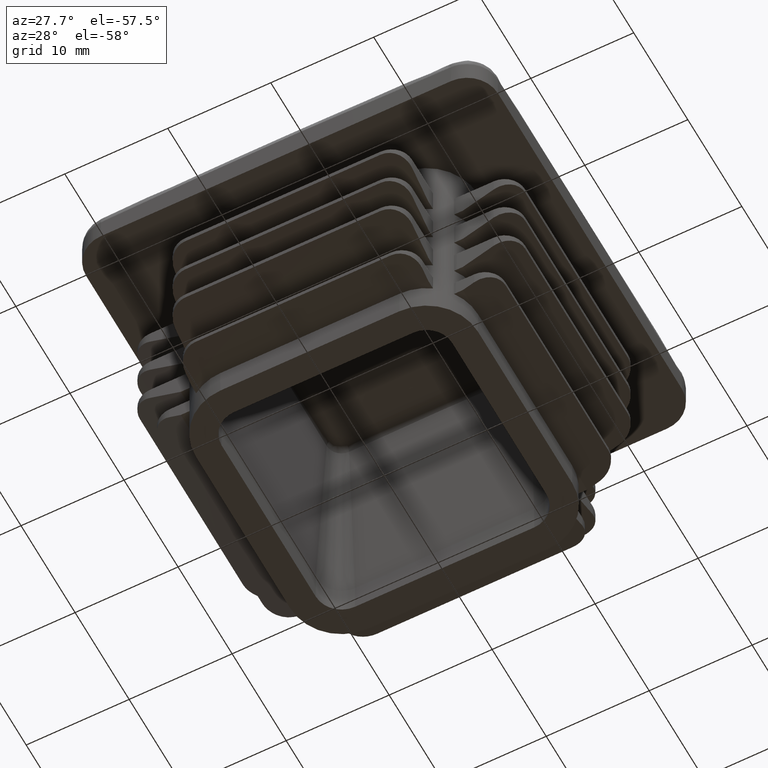
[diagram: clean part render]
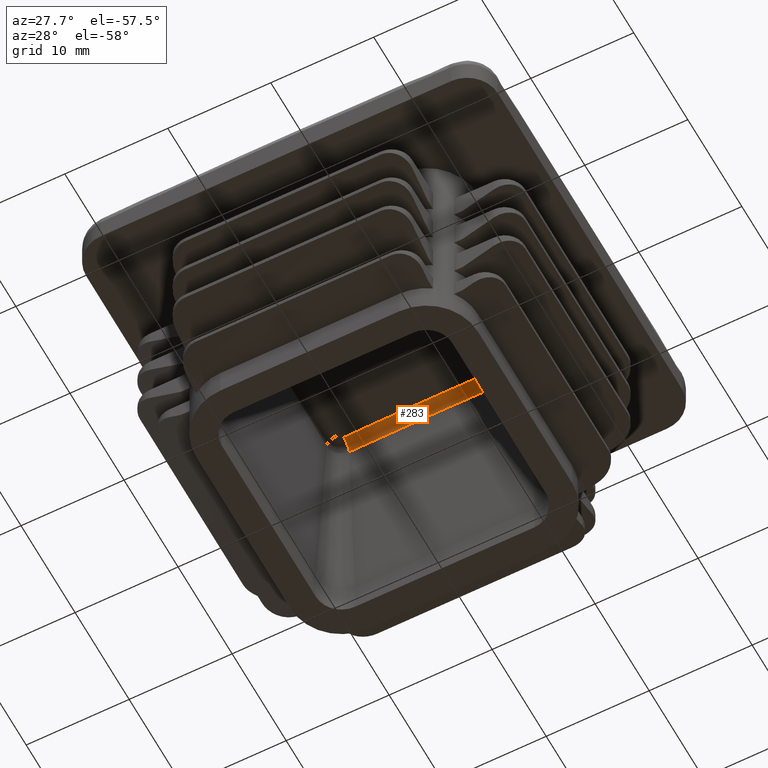
[diagram: same view with one face highlighted and labeled with its STEP entity id]
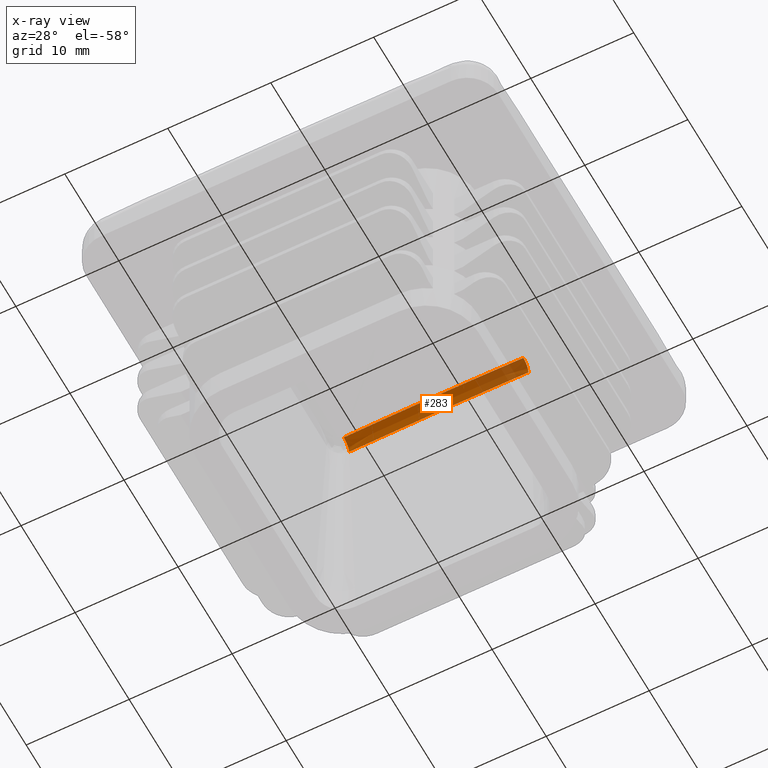
[diagram: x-ray of the same camera — body ghosted, the highlighted face saturated]
A machine part, auxiliary view. The second image highlights one B-rep face of the part: STEP entity #283.
The next image is the same camera in x-ray: the body ghosted, the highlighted face saturated — about 26% of this face is hidden behind the body in this view.
In plain terms, the highlighted face is a freeform B-spline surface patch.
Its self-contained STEP definition (entity closure, byte-faithful):
#283 = ADVANCED_FACE( '', ( #784 ), #785, .F. );
#784 = FACE_OUTER_BOUND( '', #2653, .T. );
#785 = ( B_SPLINE_SURFACE( 3, 2, ( ( #2655, #2656, #2657 ), ( #2658, #2659, #2660 ), ( #2661, #2662, #2663 ), ( #2664, #2665, #2666 ), ( #2667, #2668, #2669 ), ( #2670, #2671, #2672 ), ( #2673, #2674, #2675 ), ( #2676, #2677, #2678 ), ( #2679, #2680, #2681 ), ( #2682, #2683, #2684 ), ( #2685, #2686, #2687 ), ( #2688, #2689, #2690 ), ( #2691, #2692, #2693 ), ( #2694, #2695, #2696 ) ), .UNSPECIFIED., .F., .F., .F. )B_SPLINE_SURFACE_WITH_KNOTS( ( 4, 2, 2, 2, 2, 2, 4 ), ( 3, 3 ), ( 0.000000000000000, 0.00435007972744751, 0.00652511959117126, 0.00870015945489502, 0.0108751993186188, 0.0130502391823425, 0.0174003189097900 ), ( 0.000000000000000, 1.00000000000000 ), .UNSPECIFIED. )RATIONAL_B_SPLINE_SURFACE( ( ( 1.00000000000000, 0.733401320647116, 1.00000000000000 ), ( 1.00000000000000, 0.733481391481356, 1.00000000000000 ), ( 1.00000000000000, 0.733575680931441, 1.00000000000000 ), ( 1.00000000000000, 0.733693971071257, 1.00000000000000 ), ( 1.00000000000000, 0.733729046657464, 1.00000000000000 ), ( 1.00000000000000, 0.733778394885283, 1.00000000000000 ), ( 1.00000000000000, 0.733792294191704, 1.00000000000000 ), ( 1.00000000000000, 0.733792306514644, 1.00000000000000 ), ( 1.00000000000000, 0.733778409102927, 1.00000000000000 ), ( 1.00000000000000, 0.733729066895693, 1.00000000000000 ), ( 1.00000000000000, 0.733693989590595, 1.00000000000000 ), ( 1.00000000000000, 0.733575688647149, 1.00000000000000 ), ( 1.00000000000000, 0.733481391290748, 1.00000000000000 ), ( 1.00000000000000, 0.733401320647116, 1.00000000000000 ) ) )BOUNDED_SURFACE(  )REPRESENTATION_ITEM( '' )GEOMETRIC_REPRESENTATION_ITEM(  )SURFACE(  ) );
#2653 = EDGE_LOOP( '', ( #5067, #5068, #5069, #5070 ) );
#2655 = CARTESIAN_POINT( '', ( 8.70000000000000, 10.1349974489749, 23.3214592488889 ) );
#2656 = CARTESIAN_POINT( '', ( 8.72078293368631, 10.0864990011659, 24.2468647606750 ) );
#2657 = CARTESIAN_POINT( '', ( 8.72235734470829, 9.15984664144333, 24.2685976037243 ) );
#2658 = CARTESIAN_POINT( '', ( 7.25014853430400, 10.1332956711804, 23.3539311035991 ) );
#2659 = CARTESIAN_POINT( '', ( 7.26767693503501, 10.0848050411894, 24.2791874427374 ) );
#2660 = CARTESIAN_POINT( '', ( 7.26900986439671, 9.15837984798593, 24.3011421410688 ) );
#2661 = CARTESIAN_POINT( '', ( 5.80024923080524, 10.1319922931860, 23.3788010372650 ) );
#2662 = CARTESIAN_POINT( '', ( 5.81443485582905, 10.0835119489341, 24.3038611125961 ) );
#2663 = CARTESIAN_POINT( '', ( 5.81551754769913, 9.15734700982602, 24.3260678171719 ) );
#2664 = CARTESIAN_POINT( '', ( 3.62532419153245, 10.1306754162989, 23.4039285451478 ) );
#2665 = CARTESIAN_POINT( '', ( 3.63430357554494, 10.0822088471792, 24.3287257753101 ) );
#2666 = CARTESIAN_POINT( '', ( 3.63499172003566, 9.15637479639059, 24.3512516016478 ) );
#2667 = CARTESIAN_POINT( '', ( 2.90033643544690, 10.1303431008251, 23.4102695021276 ) );
#2668 = CARTESIAN_POINT( '', ( 2.90754843575627, 10.0818807362297, 24.3349865051833 ) );
#2669 = CARTESIAN_POINT( '', ( 2.90810184579439, 9.15614482126011, 24.3576067600986 ) );
#2670 = CARTESIAN_POINT( '', ( 1.45033459470167, 10.1298988082492, 23.4187471094984 ) );
#2671 = CARTESIAN_POINT( '', ( 1.45396456068258, 10.0814424067125, 24.3433503306153 ) );
#2672 = CARTESIAN_POINT( '', ( 1.45424369488714, 9.15584457017859, 24.3661033542864 ) );
#2673 = CARTESIAN_POINT( '', ( 0.725320495348212, 10.1297869541308, 23.4208814132208 ) );
#2674 = CARTESIAN_POINT( '', ( 0.727136194362376, 10.0813322597698, 24.3454520594808 ) );
#2675 = CARTESIAN_POINT( '', ( 0.727275825756516, 9.15577332667855, 24.3682424380837 ) );
#2676 = CARTESIAN_POINT( '', ( -0.724734427416993, 10.1297868940015, 23.4208825605552 ) );
#2677 = CARTESIAN_POINT( '', ( -0.726548659323896, 10.0813322005235, 24.3454531899743 ) );
#2678 = CARTESIAN_POINT( '', ( -0.726688177894141, 9.15577328764227, 24.3682435879746 ) );
#2679 = CARTESIAN_POINT( '', ( -1.44977525084504, 10.1298986881241, 23.4187494016217 ) );
#2680 = CARTESIAN_POINT( '', ( -1.45340382466455, 10.0814422883215, 24.3433525896492 ) );
#2681 = CARTESIAN_POINT( '', ( -1.45368285201159, 9.15584449157334, 24.3661056515458 ) );
#2682 = CARTESIAN_POINT( '', ( -2.89988326164102, 10.1303429107422, 23.4102731291259 ) );
#2683 = CARTESIAN_POINT( '', ( -2.90709415281598, 10.0818805485762, 24.3349900858261 ) );
#2684 = CARTESIAN_POINT( '', ( -2.90764747818759, 9.15614469022987, 24.3576103952174 ) );
#2685 = CARTESIAN_POINT( '', ( -3.62496335957137, 10.1306752247137, 23.4039322008118 ) );
#2686 = CARTESIAN_POINT( '', ( -3.63394187209583, 10.0822086577805, 24.3287293892495 ) );
#2687 = CARTESIAN_POINT( '', ( -3.63462995035038, 9.15637465880048, 24.3512552655034 ) );
#2688 = CARTESIAN_POINT( '', ( -5.80014801295367, 10.1319921781320, 23.3788032326255 ) );
#2689 = CARTESIAN_POINT( '', ( -5.81433341117055, 10.0835118347189, 24.3038632919596 ) );
#2690 = CARTESIAN_POINT( '', ( -5.81541608623570, 9.15734691718323, 24.3260700174407 ) );
#2691 = CARTESIAN_POINT( '', ( -7.25013689124370, 10.1332956575102, 23.3539313644402 ) );
#2692 = CARTESIAN_POINT( '', ( -7.26766526536855, 10.0848050275767, 24.2791877023839 ) );
#2693 = CARTESIAN_POINT( '', ( -7.26899819279164, 9.15837983620714, 24.3011424024288 ) );
#2694 = CARTESIAN_POINT( '', ( -8.70000000000000, 10.1349974489749, 23.3214592488888 ) );
#2695 = CARTESIAN_POINT( '', ( -8.72078293368631, 10.0864990011659, 24.2468647606749 ) );
#2696 = CARTESIAN_POINT( '', ( -8.72235734470829, 9.15984664144333, 24.2685976037243 ) );
#5067 = ORIENTED_EDGE( '', *, *, #6287, .T. );
#5068 = ORIENTED_EDGE( '', *, *, #5833, .F. );
#5069 = ORIENTED_EDGE( '', *, *, #6288, .F. );
#5070 = ORIENTED_EDGE( '', *, *, #5820, .F. );
#5820 = EDGE_CURVE( '', #6683, #6685, #6686, .T. );
#5833 = EDGE_CURVE( '', #6702, #6699, #6704, .T. );
#6287 = EDGE_CURVE( '', #6683, #6699, #7473, .T. );
#6288 = EDGE_CURVE( '', #6685, #6702, #7474, .T. );
#6683 = VERTEX_POINT( '', #9045 );
#6685 = VERTEX_POINT( '', #9080 );
#6686 = B_SPLINE_CURVE_WITH_KNOTS( '', 3, ( #9081, #9082, #9083, #9084, #9085, #9086, #9087, #9088, #9089, #9090, #9091, #9092, #9093 ), .UNSPECIFIED., .F., .F., ( 4, 2, 2, 1, 2, 2, 4 ), ( 0.000000000000000, 0.00436178628878418, 0.00654267943317628, 0.00872357257756837, 0.0109044657219605, 0.0130853588663526, 0.0174471451551367 ), .UNSPECIFIED. );
#6699 = VERTEX_POINT( '', #9207 );
#6702 = VERTEX_POINT( '', #9251 );
#6704 = B_SPLINE_CURVE_WITH_KNOTS( '', 3, ( #9254, #9255, #9256, #9257, #9258, #9259, #9260, #9261, #9262, #9263, #9264, #9265, #9266 ), .UNSPECIFIED., .F., .F., ( 4, 2, 2, 1, 2, 2, 4 ), ( 0.000000000000000, 0.00435007972744751, 0.00652511959117126, 0.00870015945489502, 0.0108751993186188, 0.0130502391823425, 0.0174003189097900 ), .UNSPECIFIED. );
#7473 = CIRCLE( '', #10578, 1.00000000000000 );
#7474 = CIRCLE( '', #10579, 1.00000000000000 );
#9045 = CARTESIAN_POINT( '', ( -8.72235734470829, 9.15984664144333, 24.2685976037243 ) );
#9080 = CARTESIAN_POINT( '', ( 8.72235734470829, 9.15984664144333, 24.2685976037243 ) );
#9081 = CARTESIAN_POINT( '', ( -8.72235734470829, 9.15984664144333, 24.2685976037243 ) );
#9082 = CARTESIAN_POINT( '', ( -7.26876831325159, 9.15837960420678, 24.3011475500780 ) );
#9083 = CARTESIAN_POINT( '', ( -5.81505331421815, 9.15734669428626, 24.3260755338677 ) );
#9084 = CARTESIAN_POINT( '', ( -3.63427912297306, 9.15637453298383, 24.3512586534205 ) );
#9085 = CARTESIAN_POINT( '', ( -2.90733584294019, 9.15614460782479, 24.3576126918382 ) );
#9086 = CARTESIAN_POINT( '', ( -1.45350150530485, 9.15584447219904, 24.3661062351695 ) );
#9087 = CARTESIAN_POINT( '', ( 0.000306453002893057, 9.15570210318917, 24.3703809377542 ) );
#9088 = CARTESIAN_POINT( '', ( 1.45406094895213, 9.15584455059911, 24.3661039439186 ) );
#9089 = CARTESIAN_POINT( '', ( 2.90778907155429, 9.15614473851085, 24.3576090662075 ) );
#9090 = CARTESIAN_POINT( '', ( 3.63463996037227, 9.15637467020948, 24.3512549992338 ) );
#9091 = CARTESIAN_POINT( '', ( 5.81515434936473, 9.15734678660195, 24.3260733414702 ) );
#9092 = CARTESIAN_POINT( '', ( 7.26877970099683, 9.15837961569988, 24.3011472950744 ) );
#9093 = CARTESIAN_POINT( '', ( 8.72235734470829, 9.15984664144333, 24.2685976037243 ) );
#9207 = CARTESIAN_POINT( '', ( -8.70000000000000, 10.1349974489749, 23.3214592488889 ) );
#9251 = CARTESIAN_POINT( '', ( 8.70000000000000, 10.1349974489749, 23.3214592488889 ) );
#9254 = CARTESIAN_POINT( '', ( 8.70000000000000, 10.1349974489749, 23.3214592488889 ) );
#9255 = CARTESIAN_POINT( '', ( 7.25014841812227, 10.1332956710463, 23.3539311061562 ) );
#9256 = CARTESIAN_POINT( '', ( 5.80024923080526, 10.1319922931853, 23.3788010372785 ) );
#9257 = CARTESIAN_POINT( '', ( 3.62532419153243, 10.1306754162993, 23.4039285451409 ) );
#9258 = CARTESIAN_POINT( '', ( 2.90033643544641, 10.1303431008255, 23.4102695021205 ) );
#9259 = CARTESIAN_POINT( '', ( 1.45033459470216, 10.1298988082488, 23.4187471095056 ) );
#9260 = CARTESIAN_POINT( '', ( 0.000306395994512619, 10.1296751000120, 23.4230157169492 ) );
#9261 = CARTESIAN_POINT( '', ( -1.44977525084451, 10.1298986881236, 23.4187494016315 ) );
#9262 = CARTESIAN_POINT( '', ( -2.89988326164156, 10.1303429107427, 23.4102731291161 ) );
#9263 = CARTESIAN_POINT( '', ( -3.62496335957146, 10.1306752247139, 23.4039322008093 ) );
#9264 = CARTESIAN_POINT( '', ( -5.80014801295349, 10.1319921781318, 23.3788032326306 ) );
#9265 = CARTESIAN_POINT( '', ( -7.25013684865751, 10.1332956574666, 23.3539313652737 ) );
#9266 = CARTESIAN_POINT( '', ( -8.70000000000000, 10.1349974489749, 23.3214592488888 ) );
#10578 = AXIS2_PLACEMENT_3D( '', #11551, #11552, #11553 );
#10579 = AXIS2_PLACEMENT_3D( '', #11554, #11555, #11556 );
#11551 = CARTESIAN_POINT( '', ( -8.70000000000000, 9.13636791422034, 23.2691232926459 ) );
#11552 = DIRECTION( '', ( -0.999748600412505, 0.00117346501088041, -0.0223910462709177 ) );
#11553 = DIRECTION( '', ( -0.0223910616873943, 0.000000000000000, 0.999749288750190 ) );
#11554 = CARTESIAN_POINT( '', ( 8.70000000000000, 9.13636791422034, 23.2691232926459 ) );
#11555 = DIRECTION( '', ( -0.999748600412505, -0.00117346501088041, 0.0223910462709177 ) );
#11556 = DIRECTION( '', ( 0.0223910616873943, 0.000000000000000, 0.999749288750190 ) );